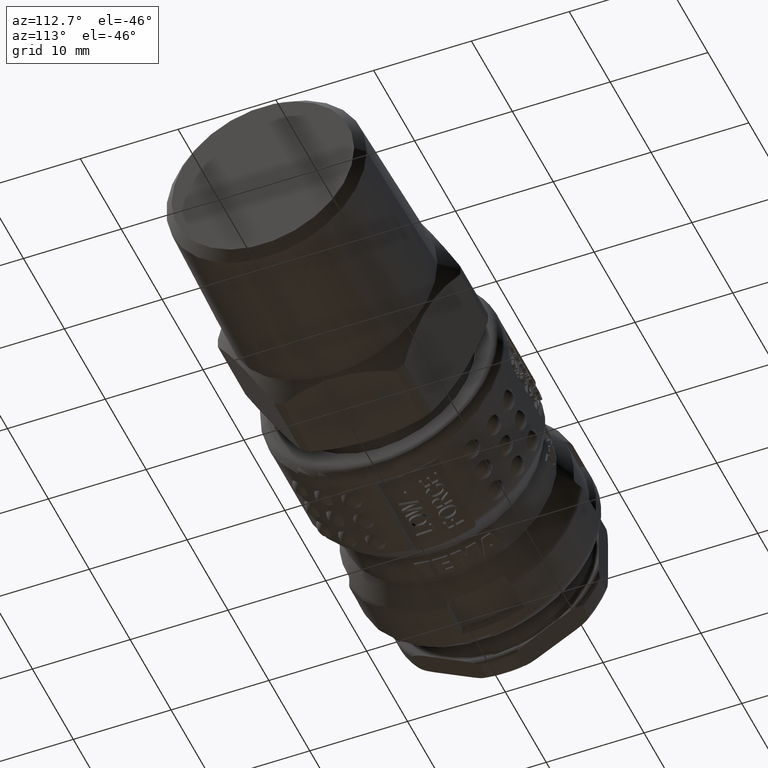
[diagram: clean part render]
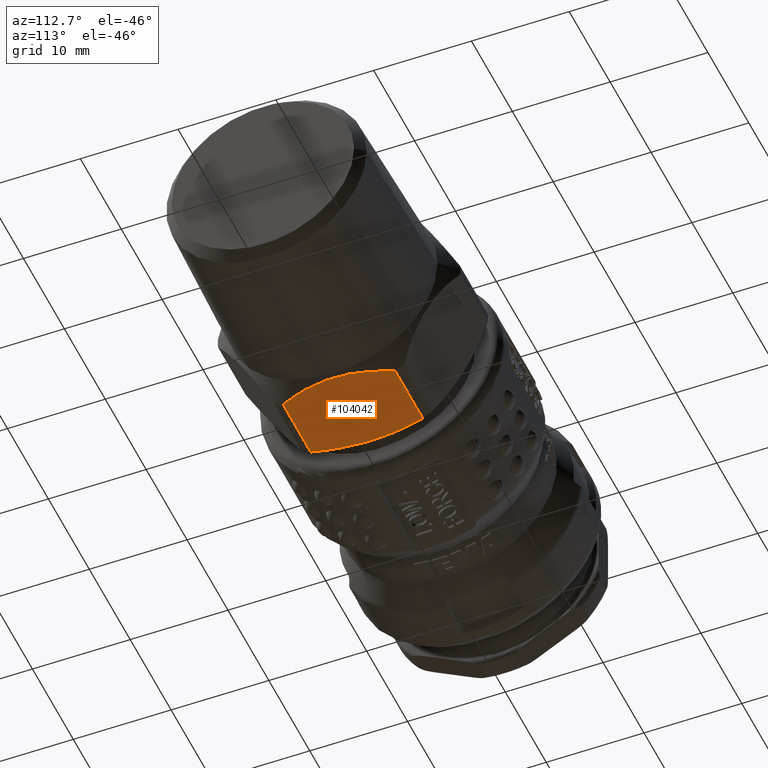
[diagram: same view with one face highlighted and labeled with its STEP entity id]
A machine part, auxiliary view. The second image highlights one B-rep face of the part: STEP entity #104042.
In plain terms, the highlighted planar face has unit normal (0, 0, 1).
Its self-contained STEP definition (entity closure, byte-faithful):
#103849=CARTESIAN_POINT('',(33.877713240271476,5.723635208501677,-11.0));
#103850=VERTEX_POINT('',#103849);
#103858=CARTESIAN_POINT('',(33.877713240271476,-5.723635208501677,-11.0));
#103859=VERTEX_POINT('',#103858);
#103860=CARTESIAN_POINT('',(33.877713240271476,5.723635208501658,-11.0));
#103861=CARTESIAN_POINT('',(32.352391077476952,-4.293441E-016,-11.0));
#103862=CARTESIAN_POINT('',(33.877713240271476,-5.723635208501658,-11.0));
#103870=(BOUNDED_CURVE()B_SPLINE_CURVE(2,(#103860,#103861,#103862),.UNSPECIFIED.,.F.,.U.)B_SPLINE_CURVE_WITH_KNOTS((3,3),(0.0,1.156085348637083),.UNSPECIFIED.)CURVE()GEOMETRIC_REPRESENTATION_ITEM()RATIONAL_B_SPLINE_CURVE((1.0,1.127272727272728,1.0))REPRESENTATION_ITEM(''));
#103871=EDGE_CURVE('',#103850,#103859,#103870,.T.);
#103921=CARTESIAN_POINT('',(40.640976361582176,5.723635208501669,-11.000000000000004));
#103922=VERTEX_POINT('',#103921);
#103930=CARTESIAN_POINT('',(40.640976361582190,5.723635208501677,-11.0));
#103931=DIRECTION('',(-1.0,0.0,0.0));
#103932=VECTOR('',#103931,6.763263121310715);
#103933=LINE('',#103930,#103932);
#103934=EDGE_CURVE('',#103922,#103850,#103933,.T.);
#103947=CARTESIAN_POINT('',(40.640976361582176,-5.723635208501669,-11.000000000000004));
#103948=VERTEX_POINT('',#103947);
#103949=CARTESIAN_POINT('',(33.877713240271476,-5.723635208501677,-11.0));
#103950=DIRECTION('',(1.0,0.0,0.0));
#103951=VECTOR('',#103950,6.763263121310715);
#103952=LINE('',#103949,#103951);
#103953=EDGE_CURVE('',#103859,#103948,#103952,.T.);
#104019=CARTESIAN_POINT('',(44.115189136583979,-4.293441E-016,-11.000000000000004));
#104020=DIRECTION('',(0.0,0.0,1.0));
#104021=DIRECTION('',(1.0,0.0,0.0));
#104022=AXIS2_PLACEMENT_3D('',#104019,#104020,#104021);
#104023=PLANE('',#104022);
#104024=CARTESIAN_POINT('',(40.640976361582190,-5.723635208501668,-11.000000000000004));
#104025=CARTESIAN_POINT('',(43.282911845453143,-4.293441E-016,-11.000000000000004));
#104026=CARTESIAN_POINT('',(40.640976361582190,5.723635208501668,-11.000000000000004));
#104034=(BOUNDED_CURVE()B_SPLINE_CURVE(2,(#104024,#104025,#104026),.UNSPECIFIED.,.F.,.U.)B_SPLINE_CURVE_WITH_KNOTS((3,3),(0.0,1.178473589012498),.UNSPECIFIED.)CURVE()GEOMETRIC_REPRESENTATION_ITEM()RATIONAL_B_SPLINE_CURVE((1.0,1.127272727272730,1.0))REPRESENTATION_ITEM(''));
#104035=EDGE_CURVE('',#103948,#103922,#104034,.T.);
#104036=ORIENTED_EDGE('',*,*,#104035,.F.);
#104037=ORIENTED_EDGE('',*,*,#103953,.F.);
#104038=ORIENTED_EDGE('',*,*,#103871,.F.);
#104039=ORIENTED_EDGE('',*,*,#103934,.F.);
#104040=EDGE_LOOP('',(#104036,#104037,#104038,#104039));
#104041=FACE_OUTER_BOUND('',#104040,.T.);
#104042=ADVANCED_FACE('',(#104041),#104023,.F.);